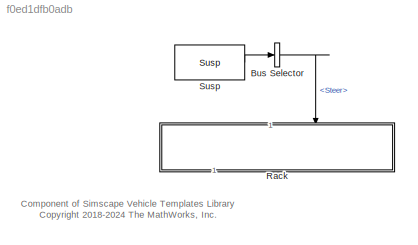
MODEL slx_f0ed1dfb0adb
KIND library
CONFIG AbsTol = auto
CONFIG EnableMultiTasking = off
CONFIG FixedStep = auto
CONFIG MaxStep = auto
CONFIG MinStep = auto
CONFIG RelTol = 1e-3
CONFIG SampleTimeConstraint = Unconstrained
CONFIG SolverName = VariableStepAuto
CONFIG StartTime = 0.0
CONFIG StopTime = 10.0
BLOCK [BusSelector] Bus Selector
  OutputSignals = Steer
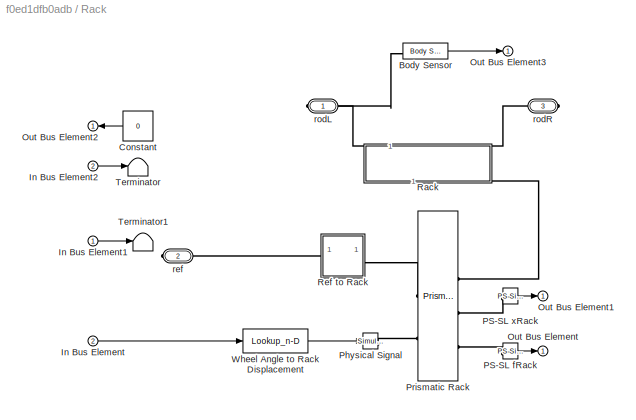
BLOCK [SubSystem] Rack
  NameLocation = left
  Tag = PublishSubsystem
  VariantControl = Rack
BLOCK [Reference] Rack/Body Sensor  REF=Body_Utilities/Body Sensor
  SourceBlock = Body_Utilities/Body Sensor
BLOCK [Constant] Rack/Constant
  Value = 0
BLOCK [Inport] Rack/In Bus Element
  Port = 2
BLOCK [Inport] Rack/In Bus Element1
BLOCK [Inport] Rack/In Bus Element2
  Port = 2
BLOCK [Outport] Rack/Out Bus Element
  VectorParamsAs1DForOutWhenUnconnected = off
BLOCK [Outport] Rack/Out Bus Element1
  VectorParamsAs1DForOutWhenUnconnected = off
BLOCK [Outport] Rack/Out Bus Element2
  VectorParamsAs1DForOutWhenUnconnected = off
BLOCK [Outport] Rack/Out Bus Element3
  VectorParamsAs1DForOutWhenUnconnected = off
BLOCK [Reference] Rack/PS-SL fRack  REF=nesl_utility/PS-Simulink
Converter
  SourceBlock = nesl_utility/PS-Simulink\nConverter
  SourceType = PS-Simulink\nConverter
BLOCK [Reference] Rack/PS-SL xRack  REF=nesl_utility/PS-Simulink
Converter
  SourceBlock = nesl_utility/PS-Simulink\nConverter
  SourceType = PS-Simulink\nConverter
BLOCK [Reference] Rack/Physical Signal  REF=nesl_utility/Simulink-PS
Converter
  AttributesFormatString = Filter Time Constant\n%<InputFilterTimeConstant> sec
  SourceBlock = nesl_utility/Simulink-PS\nConverter
  SourceType = Simulink-PS\nConverter
BLOCK [Reference] Rack/Prismatic Rack  REF=sm_lib/Joints/Prismatic
Joint
  SourceBlock = sm_lib/Joints/Prismatic\nJoint
  SourceType = Prismatic\nJoint
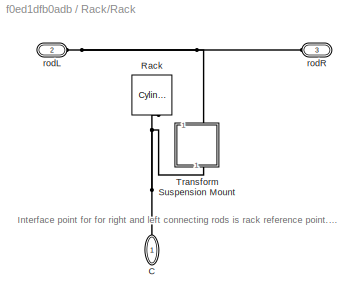
BLOCK [SubSystem] Rack/Rack
  NameLocation = left
BLOCK [PMIOPort] Rack/Rack/C
  NameLocation = left
  Side = Right
BLOCK [Reference] Rack/Rack/Rack  REF=sm_lib/Body Elements/Cylindrical Solid
  NameLocation = left
  SourceBlock = sm_lib/Body Elements/Cylindrical Solid
  SourceType = Cylindrical Solid
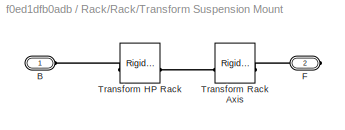
BLOCK [SubSystem] Rack/Rack/Transform Suspension Mount
  NameLocation = right
BLOCK [PMIOPort] Rack/Rack/Transform Suspension Mount/B
  Side = Left
BLOCK [PMIOPort] Rack/Rack/Transform Suspension Mount/F
  Port = 2
  Side = Right
BLOCK [Reference] Rack/Rack/Transform Suspension Mount/Transform HP Rack  REF=sm_lib/Frames and
Transforms/Rigid
Transform
  SourceBlock = sm_lib/Frames and\nTransforms/Rigid\nTransform
  SourceType = Rigid\nTransform
BLOCK [Reference] Rack/Rack/Transform Suspension Mount/Transform Rack Axis  REF=sm_lib/Frames and
Transforms/Rigid
Transform
  SourceBlock = sm_lib/Frames and\nTransforms/Rigid\nTransform
  SourceType = Rigid\nTransform
BLOCK [PMIOPort] Rack/Rack/rodL
  Port = 2
  Side = Left
BLOCK [PMIOPort] Rack/Rack/rodR
  Port = 3
  Side = Left
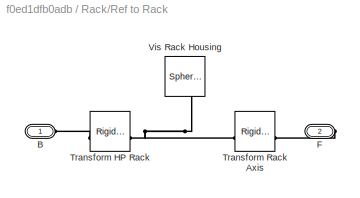
BLOCK [SubSystem] Rack/Ref to Rack
BLOCK [PMIOPort] Rack/Ref to Rack/B
  Side = Left
BLOCK [PMIOPort] Rack/Ref to Rack/F
  Port = 2
  Side = Right
BLOCK [Reference] Rack/Ref to Rack/Transform HP Rack  REF=sm_lib/Frames and
Transforms/Rigid
Transform
  SourceBlock = sm_lib/Frames and\nTransforms/Rigid\nTransform
  SourceType = Rigid\nTransform
BLOCK [Reference] Rack/Ref to Rack/Transform Rack Axis  REF=sm_lib/Frames and
Transforms/Rigid
Transform
  SourceBlock = sm_lib/Frames and\nTransforms/Rigid\nTransform
  SourceType = Rigid\nTransform
BLOCK [Reference] Rack/Ref to Rack/Vis Rack Housing  REF=sm_lib/Body Elements/Spherical Solid
  NameLocation = left
  SourceBlock = sm_lib/Body Elements/Spherical Solid
  SourceType = Spherical Solid
BLOCK [Terminator] Rack/Terminator
BLOCK [Terminator] Rack/Terminator1
BLOCK [Lookup_n-D] Rack/Wheel Angle to Rack Displacement
  BreakpointsForDimension1 = whl2rack_whlangle
  InputPortMap = u0
  InternalRulePriority = Speed
  NumberOfTableDimensions = 1
  RndMeth = Simplest
  Table = whl2rack_rackdisp
BLOCK [PMIOPort] Rack/ref
  Port = 2
  Side = Right
BLOCK [PMIOPort] Rack/rodL
  Side = Right
BLOCK [PMIOPort] Rack/rodR
  Port = 3
  Side = Right
BLOCK [Reference] Susp  REF=Vehicle_Inputs/Control Bus/Susp
  SourceBlock = Vehicle_Inputs/Control Bus/Susp
ANNOTATION (root): Component of Simscape Vehicle Templates Library <copyright redacted>
ANNOTATION Rack/Rack: Interface point for for right and left connecting rods is rack reference point. This permits the rack subsystem to mate with the connecting rods without knowing where they are, as both systems (rack and linkages) know where the front axle reference point is.
LINE Bus Selector:1 -> Rack:2
LINE Rack/Body Sensor:1 -> Rack/Out Bus Element3:1
LINE Rack/Constant:1 -> Rack/Out Bus Element2:1
LINE Rack/In Bus Element1:1 -> Rack/Terminator1:1
LINE Rack/In Bus Element2:1 -> Rack/Terminator:1
LINE Rack/In Bus Element:1 -> Rack/Wheel Angle to Rack Displacement:1
LINE Rack/PS-SL fRack:1 -> Rack/Out Bus Element:1
LINE Rack/PS-SL xRack:1 -> Rack/Out Bus Element1:1
LINE Rack/Wheel Angle to Rack Displacement:1 -> Rack/Physical Signal:1
LINE Susp:1 -> Bus Selector:1
PNET net1: Rack/Body Sensor:LConn1 -- Rack/Rack:LConn1 -- Rack/rodL:RConn1
PLINE Rack/PS-SL fRack:LConn1 -- Rack/Prismatic Rack:RConn3
PLINE Rack/PS-SL xRack:LConn1 -- Rack/Prismatic Rack:RConn2
PLINE Rack/Physical Signal:RConn1 -- Rack/Prismatic Rack:LConn2
PLINE Rack/Prismatic Rack:LConn1 -- Rack/Ref to Rack:RConn1
PLINE Rack/Prismatic Rack:RConn1 -- Rack/Rack:RConn1
PNET net2: Rack/Rack/C:RConn1 -- Rack/Rack/Rack:RConn1 -- Rack/Rack/Transform Suspension Mount:RConn1
PLINE Rack/Rack/Transform Suspension Mount/B:RConn1 -- Rack/Rack/Transform Suspension Mount/Transform HP Rack:LConn1
PLINE Rack/Rack/Transform Suspension Mount/F:RConn1 -- Rack/Rack/Transform Suspension Mount/Transform Rack Axis:RConn1
PLINE Rack/Rack/Transform Suspension Mount/Transform HP Rack:RConn1 -- Rack/Rack/Transform Suspension Mount/Transform Rack Axis:LConn1
PNET net3: Rack/Rack/Transform Suspension Mount:LConn1 -- Rack/Rack/rodL:RConn1 -- Rack/Rack/rodR:RConn1
PLINE Rack/Rack:LConn2 -- Rack/rodR:RConn1
PLINE Rack/Ref to Rack/B:RConn1 -- Rack/Ref to Rack/Transform HP Rack:LConn1
PLINE Rack/Ref to Rack/F:RConn1 -- Rack/Ref to Rack/Transform Rack Axis:RConn1
PNET net4: Rack/Ref to Rack/Transform HP Rack:RConn1 -- Rack/Ref to Rack/Transform Rack Axis:LConn1 -- Rack/Ref to Rack/Vis Rack Housing:RConn1
PLINE Rack/Ref to Rack:LConn1 -- Rack/ref:RConn1
note: PNET lines group multi-terminal physical nets as a canonical sorted terminal list (undirected conserving connections); 2-terminal nets keep the pairwise PLINE form
